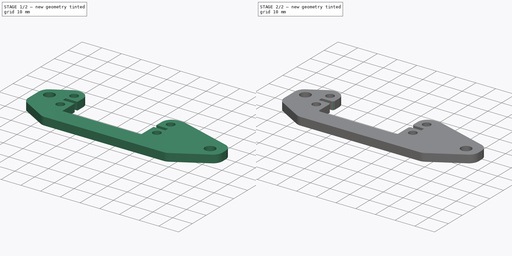
[diagram: build sequence overview — one tinted view per stage of 2, left to right]
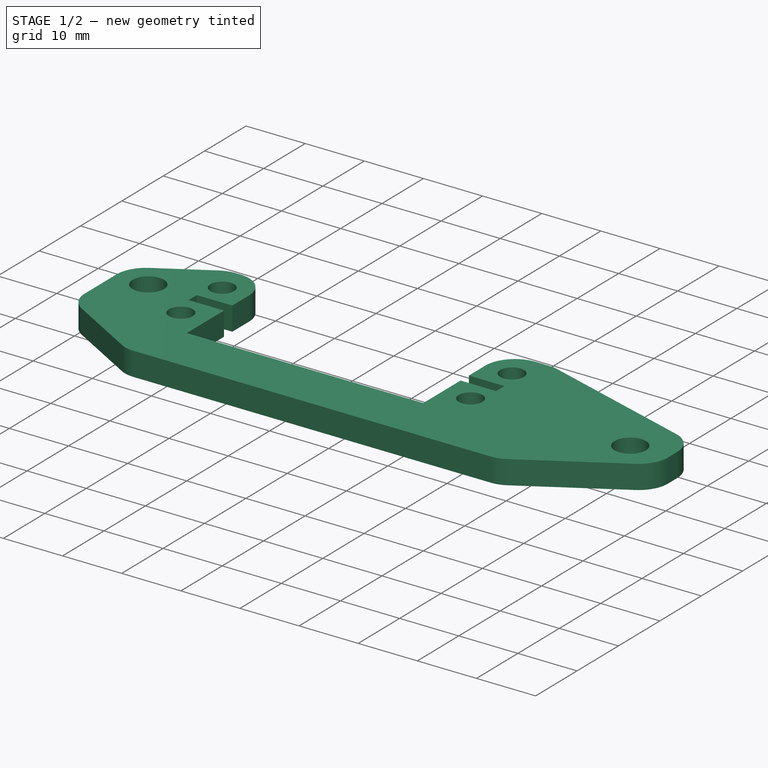
[diagram: stage 1 of 2 — iso view after this stage's code; geometry added in this stage tinted green]
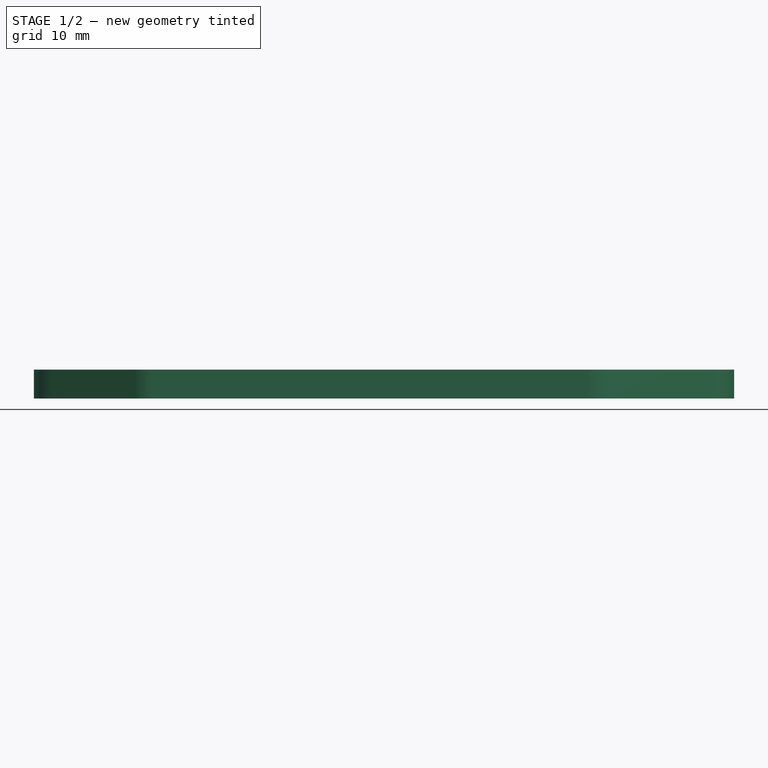
[diagram: stage 1 of 2 — front view after this stage's code; geometry added in this stage tinted green]
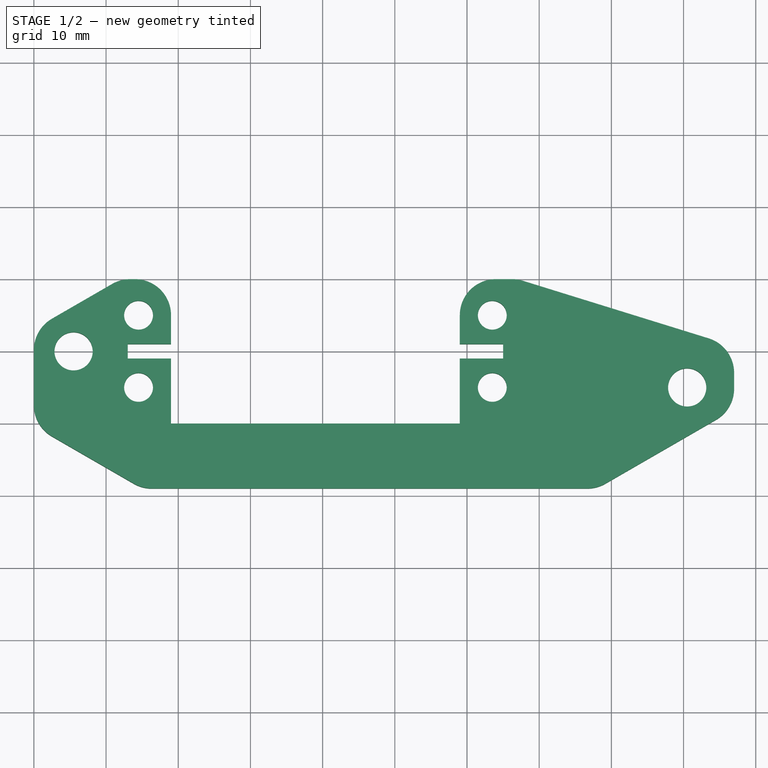
[diagram: stage 1 of 2 — top view after this stage's code; geometry added in this stage tinted green]
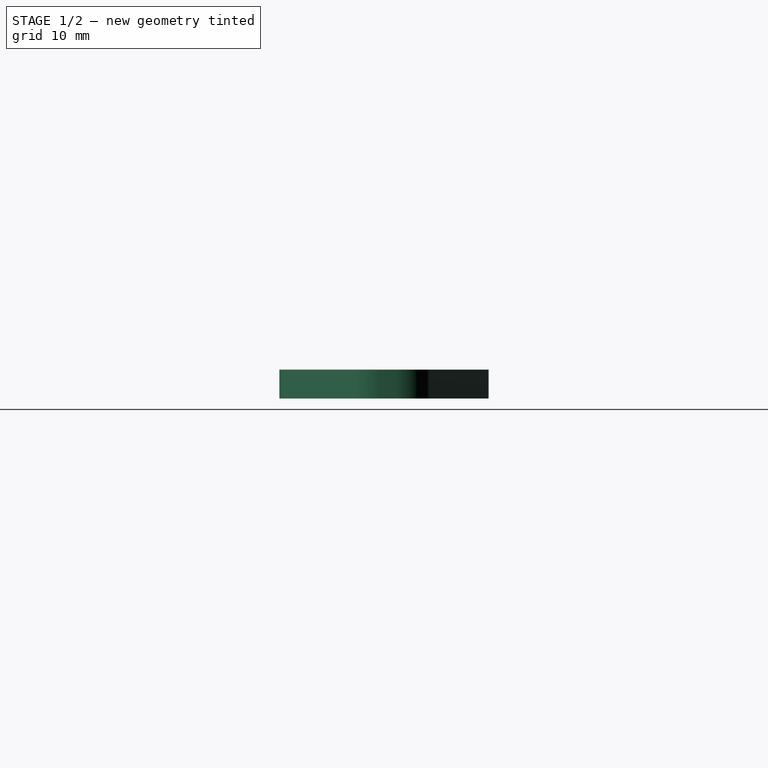
[diagram: stage 1 of 2 — right view after this stage's code; geometry added in this stage tinted green]
FCSTD DOCUMENT  (FreeCAD 0.19R24276 (Git))
Label: Servo_support_V4_long
License: All rights reserved
LicenseURL: http://en.wikipedia.org/wiki/All_rights_reserved
objects: PartDesign::Fillet×3, Sketcher::SketchObject×1, PartDesign::Pad×1, PartDesign::Body×1
note: 10 computed .brp shape members not serialized (recipe doc carries the construction recipe); baked Part::Feature solids carry a one-line shape summary decoded from their .brp

FEATURE [Sketcher::SketchObject] Sketch005  label="Sketch005_54x20"
  AttachmentOffset = pos=(0,0,-5) rot=(0,0,1;0rad)
  FullyConstrained = false
  MapMode = 5
  Placement = pos=(0,0,-3) rot=(0,0,1;0rad)
  sketch-geometry (41):
    g0: GeomPoint X=-11 Y=0 Z=0
    g1: GeomPoint X=-11 Y=0 Z=0
    g2: GeomPoint X=-11 Y=0 Z=0
    g3: GeomPoint X=-11 Y=0 Z=0
    g4: Circle CenterX=-35.5 CenterY=5 CenterZ=0 NormalX=0 NormalY=0 NormalZ=1 AngleXU=0 Radius=2
    g5: Circle CenterX=-35.5 CenterY=-5 CenterZ=0 NormalX=0 NormalY=0 NormalZ=1 AngleXU=0 Radius=2
    g6: LineSegment StartX=-11 StartY=0 StartZ=0 EndX=-11 EndY=-5 EndZ=0
    g7: Circle CenterX=13.5 CenterY=5 CenterZ=0 NormalX=0 NormalY=0 NormalZ=1 AngleXU=0 Radius=2
    g8: Circle CenterX=13.5 CenterY=-5 CenterZ=0 NormalX=0 NormalY=0 NormalZ=1 AngleXU=0 Radius=2
    g9: LineSegment StartX=-11 StartY=0 StartZ=0 EndX=-35.5 EndY=0 EndZ=0
    g10: LineSegment StartX=-11 StartY=0 StartZ=0 EndX=49.8748 EndY=0 EndZ=0
    g11: ArcOfCircle CenterX=-7.75 CenterY=13.4234 CenterZ=0 NormalX=0 NormalY=0 NormalZ=1 AngleXU=0 Radius=9 StartAngle=0.290352 EndAngle=2.85124
    g12: LineSegment StartX=0 StartY=0 StartZ=0 EndX=-7.75 EndY=13.4234 EndZ=0
    g13: Circle CenterX=-44.5 CenterY=0 CenterZ=0 NormalX=0 NormalY=0 NormalZ=1 AngleXU=0 Radius=2.65
    g14: LineSegment StartX=-50 StartY=-19 StartZ=0 EndX=47 EndY=-19 EndZ=0
    g15: Circle CenterX=-44.5 CenterY=0 CenterZ=0 NormalX=0 NormalY=0 NormalZ=1 AngleXU=0 Radius=5.5
    g16: LineSegment StartX=-38 StartY=10 StartZ=0 EndX=-31 EndY=10 EndZ=0
    g17: LineSegment StartX=47 StartY=0.7 StartZ=0 EndX=47 EndY=-8.03034 EndZ=0
    g18: LineSegment StartX=-31 StartY=-10 StartZ=0 EndX=9 EndY=-10 EndZ=0
    g19: LineSegment StartX=9 StartY=-10 StartZ=0 EndX=9 EndY=-1 EndZ=0
    g20: Circle CenterX=40.5 CenterY=-5 CenterZ=0 NormalX=0 NormalY=0 NormalZ=1 AngleXU=0 Radius=2.65
    g21: Circle CenterX=40.5 CenterY=-5 CenterZ=0 NormalX=0 NormalY=0 NormalZ=1 AngleXU=0 Radius=5.5
    g22: LineSegment StartX=-31 StartY=-10 StartZ=0 EndX=-31 EndY=-1 EndZ=0
    g23: LineSegment StartX=-38 StartY=10 StartZ=0 EndX=-50 EndY=3.07 EndZ=0
    g24: LineSegment StartX=-50 StartY=3.07 StartZ=0 EndX=-50 EndY=-19 EndZ=0
    g25: LineSegment StartX=9 StartY=10 StartZ=0 EndX=17 EndY=10 EndZ=0
    g26: LineSegment StartX=17 StartY=10 StartZ=0 EndX=47 EndY=0.7 EndZ=0
    g27: LineSegment StartX=-50 StartY=-10.3397 StartZ=0 EndX=-35 EndY=-19 EndZ=0
    g28: LineSegment StartX=28 StartY=-19 StartZ=0 EndX=47 EndY=-8.03034 EndZ=0
    g29: LineSegment StartX=-50 StartY=3.07 StartZ=0 EndX=-50 EndY=-10.3397 EndZ=0
    g30: LineSegment StartX=-35 StartY=-19 StartZ=0 EndX=28 EndY=-19 EndZ=0
    g31: LineSegment StartX=-37 StartY=1 StartZ=0 EndX=-31 EndY=1 EndZ=0
    g32: LineSegment StartX=-31 StartY=-1 StartZ=0 EndX=-37 EndY=-1 EndZ=0
    g33: LineSegment StartX=-37 StartY=-1 StartZ=0 EndX=-37 EndY=1 EndZ=0
    g34: LineSegment StartX=9 StartY=1 StartZ=0 EndX=15 EndY=1 EndZ=0
    g35: LineSegment StartX=15 StartY=1 StartZ=0 EndX=15 EndY=-1 EndZ=0
    g36: LineSegment StartX=15 StartY=-1 StartZ=0 EndX=9 EndY=-1 EndZ=0
    g37: LineSegment StartX=7.12713 StartY=-1 StartZ=0 EndX=7.12713 EndY=1 EndZ=0
    g38: LineSegment StartX=-35.5 StartY=0 StartZ=0 EndX=-37 EndY=0 EndZ=0
    g39: LineSegment StartX=-31 StartY=1 StartZ=0 EndX=-31 EndY=10 EndZ=0
    g40: LineSegment StartX=9 StartY=1 StartZ=0 EndX=9 EndY=10 EndZ=0
  constraints (105):
    c: Coincident(g1,g0)
    c: Coincident(g3,g2)
    c: Coincident(g2,g0)
    c: Vertical(g5,g4)
    c: Coincident(g6,g0)
    c: Vertical(g6)
    c: Equal(g8,g7)
    c: Equal(g7,g5)
    c: Equal(g5,g4)
    c: Diameter(g8) = 4
    c: Vertical(g7,g8)
    c: Horizontal(g5,g8)
    c: Horizontal(g4,g7)
    c: Coincident(g9,g0)
    c: Horizontal(g9)
    c: Symmetric(g5,g4,g9)
    c: Coincident(g10,g0)
    c: Horizontal(g10)
    c: Symmetric(g5,g8,g6)
    c: DistanceY(g8,g7) = 10
    c: DistanceX(g5,g8) = 49
    c: Horizontal(g0,g-1)
    c: Diameter(g11) = 18
    c: Coincident(g12,g-1)
    c: Coincident(g12,g11)
    c: Angle(g10,g12) = 2.0944
    c: Distance(g11,g-1) = 15.5
    c: Diameter(g13) = 5.3
    c: Horizontal(g14)
    c: Coincident(g15,g13)
    c: Diameter(g15) = 11
    c: Horizontal(g16)
    c: DistanceY(g18,g0) = 10
    c: Horizontal(g18)
    c: Coincident(g19,g18)
    c: PointOnObject(g40,g16)
    c: Vertical(g19)
    c: DistanceX(g-1,g8) = 13.5
    c: DistanceX(g18,g18) = 40
    c: DistanceY(g14,g10) = 19
    c: Horizontal(g13,g0)
    c: DistanceX(g13,g-1) = 44.5
    c: Diameter(g20) = 5.3
    c: DistanceY(g20,g10) = 5
    c: DistanceX(g-1,g20) = 40.5
    c: DistanceX(g14,g-1) = 50
    c: DistanceX(g14,g14) = 97
    c: Vertical(g17)
    c: Coincident(g21,g20)
    c: Equal(g15,g21)
    c: DistanceY(g13,g16) = 10
    c: DistanceX(g25,g17) = 30
    c: DistanceX(g23,g16) = 12
    c: DistanceX(g16,g4) = 2.5
    c: DistanceY(g23,g16) = 6.93
    c: Coincident(g22,g18)
    c: Coincident(g39,g16)
    c: Vertical(g22)
    c: DistanceX(g-1,g18) = 9
    c: Coincident(g23,g16)
    c: Coincident(g24,g23)
    c: Coincident(g24,g14)
    c: Coincident(g25,g40)
    c: Horizontal(g25)
    c: DistanceY(g14,g17) = 19.7
    c: Coincident(g26,g25)
    c: Coincident(g26,g17)
    c: Angle(g28,g14) = 2.61799
    c: Angle(g14,g27) = 2.61799
    c: PointOnObject(g28,g14)
    c: PointOnObject(g27,g14)
    c: DistanceX(g28,g17) = 19
    c: Coincident(g17,g28)
    c: DistanceX(g24,g27) = 15
    c: PointOnObject(g27,g24)
    c: Coincident(g29,g23)
    c: Coincident(g29,g27)
    c: Coincident(g30,g27)
    c: Coincident(g30,g28)
    c: DistanceX(g27,g17) = 97
    c: Coincident(g32,g33)
    c: Coincident(g33,g31)
    c: Horizontal(g31)
    c: Horizontal(g32)
    c: Vertical(g33)
    c: Coincident(g34,g35)
    c: Coincident(g35,g36)
    c: Horizontal(g34)
    c: Horizontal(g36)
    c: Vertical(g35)
    c: Vertical(g37)
    c: DistanceX(g31,g16) = 6
    c: Coincident(g38,g9)
    c: Horizontal(g38)
    c: Symmetric(g31,g32,g38)
    c: Coincident(g39,g31)
    c: Tangent(g22,g39)
    c: Coincident(g22,g32)
    c: DistanceY(g22,g39) = 2
    c: DistanceX(g40,g34) = 6
    c: Coincident(g40,g34)
    c: Tangent(g19,g40)
    c: Coincident(g19,g36)
    c: Horizontal(g31,g40)
    c: Horizontal(g19,g22)
FEATURE [PartDesign::Pad] Pad
  Direction = (1,1,1)
  Length = 4
  Length2 = 100
  Placement = pos=(0,0,-3) rot=(0,0,1;0rad)
  Profile = -> Sketch005
  Type = 0
FEATURE [PartDesign::Fillet] Fillet
  Base = -> Pad [Edge50,Edge47,Edge53,Edge56,Edge2,Edge1,Edge44,Edge41,Edge5,Edge38]
  BaseFeature = -> Pad
  Placement = pos=(0,0,-3) rot=(0,0,1;0rad)
  Radius = 5
  SupportTransform = false
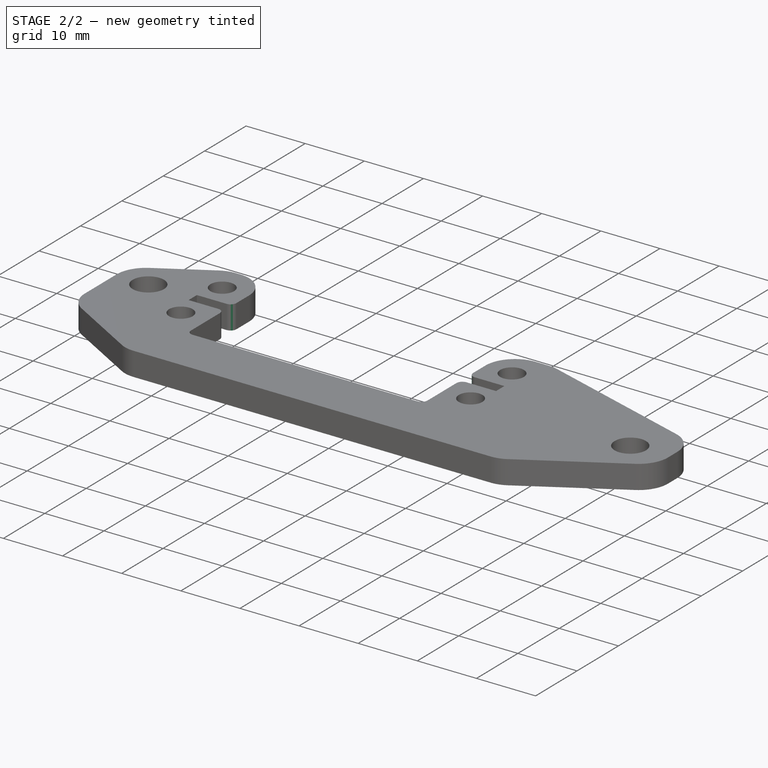
[diagram: stage 2 of 2 — iso view after this stage's code; geometry added in this stage tinted green]
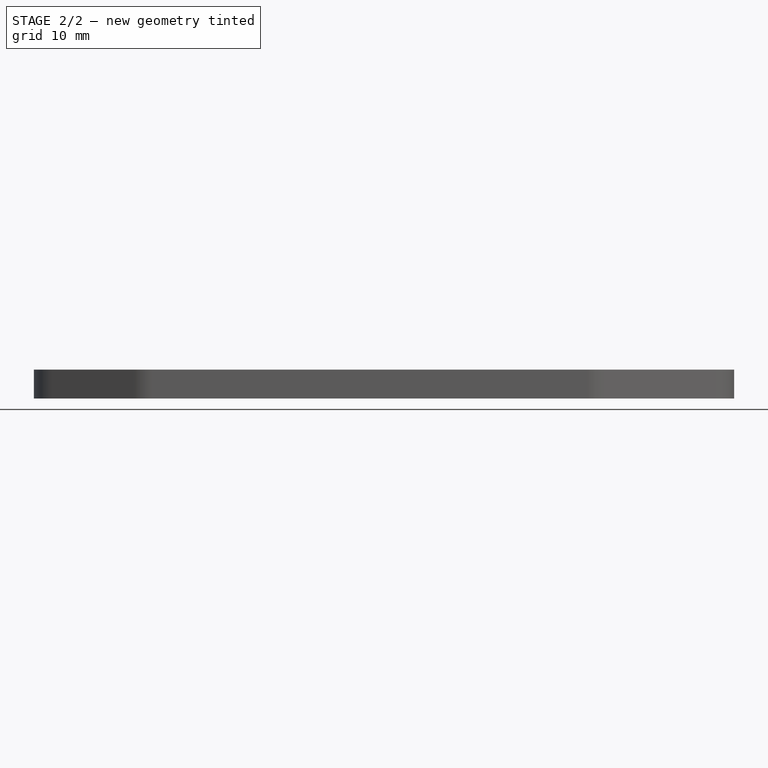
[diagram: stage 2 of 2 — front view after this stage's code; geometry added in this stage tinted green]
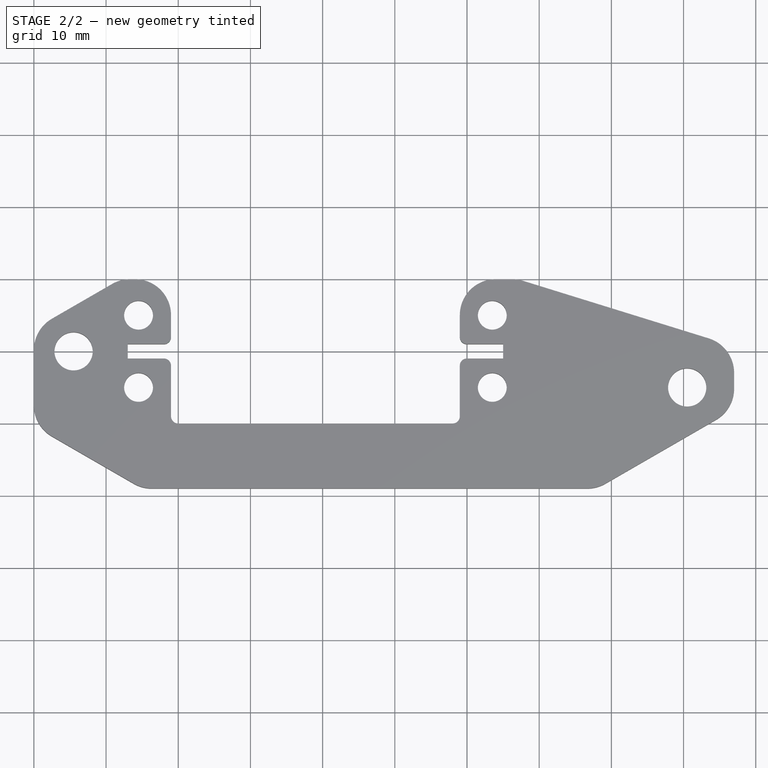
[diagram: stage 2 of 2 — top view after this stage's code; geometry added in this stage tinted green]
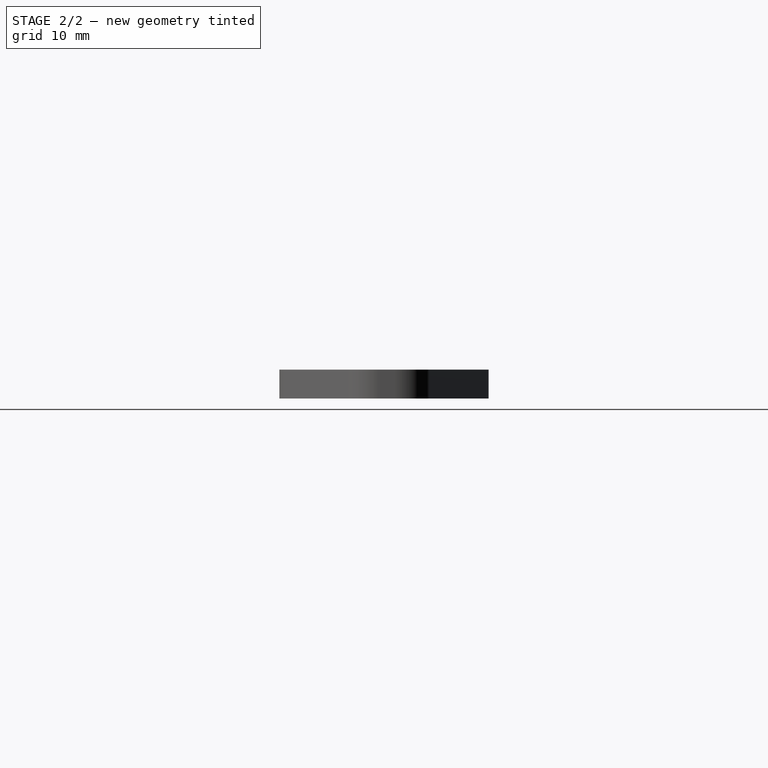
[diagram: stage 2 of 2 — right view after this stage's code; geometry added in this stage tinted green]
FEATURE [PartDesign::Fillet] Fillet001
  Base = -> Fillet [Edge89,Edge91]
  BaseFeature = -> Fillet
  Placement = pos=(0,0,-3) rot=(0,0,1;0rad)
  Radius = 1
  SupportTransform = false
FEATURE [PartDesign::Fillet] Fillet002
  Base = -> Fillet001 [Edge40,Edge52,Edge66,Edge54]
  BaseFeature = -> Fillet001
  Placement = pos=(0,0,-3) rot=(0,0,1;0rad)
  Radius = 1
  SupportTransform = false
FEATURE [PartDesign::Body] Body
  Group = -> [Sketch005,Pad,Fillet,Fillet001,Fillet002]
  Origin = -> Origin
  Tip = -> Fillet002
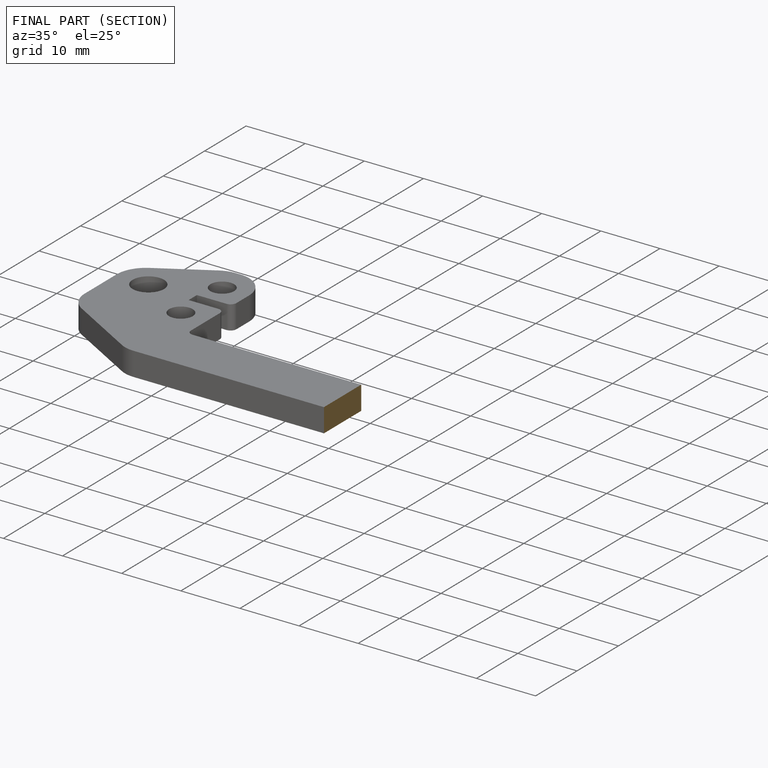
[diagram: finished part — half-section view (interior)]
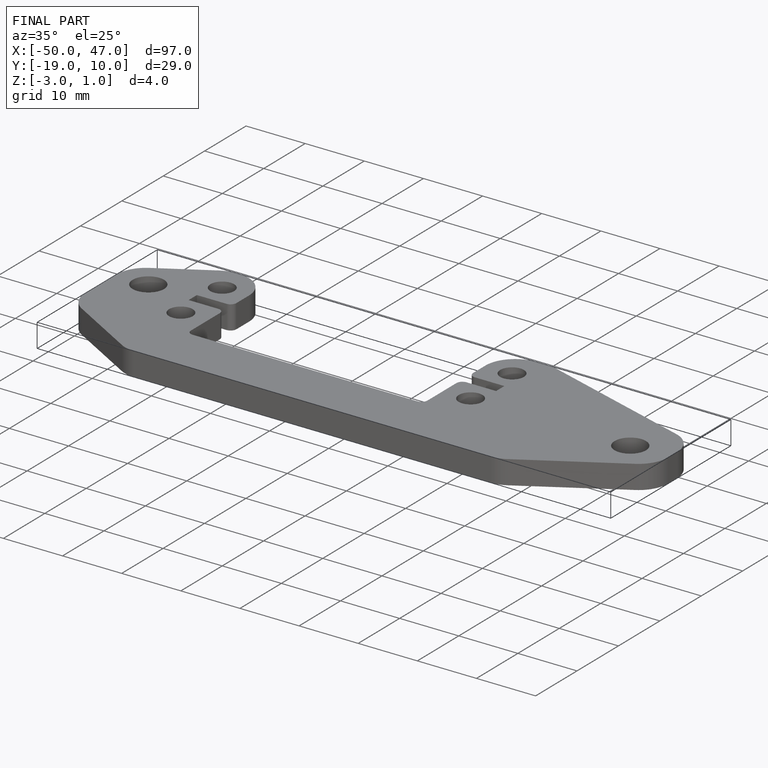
[diagram: finished part — iso view with bounding-box wireframe]
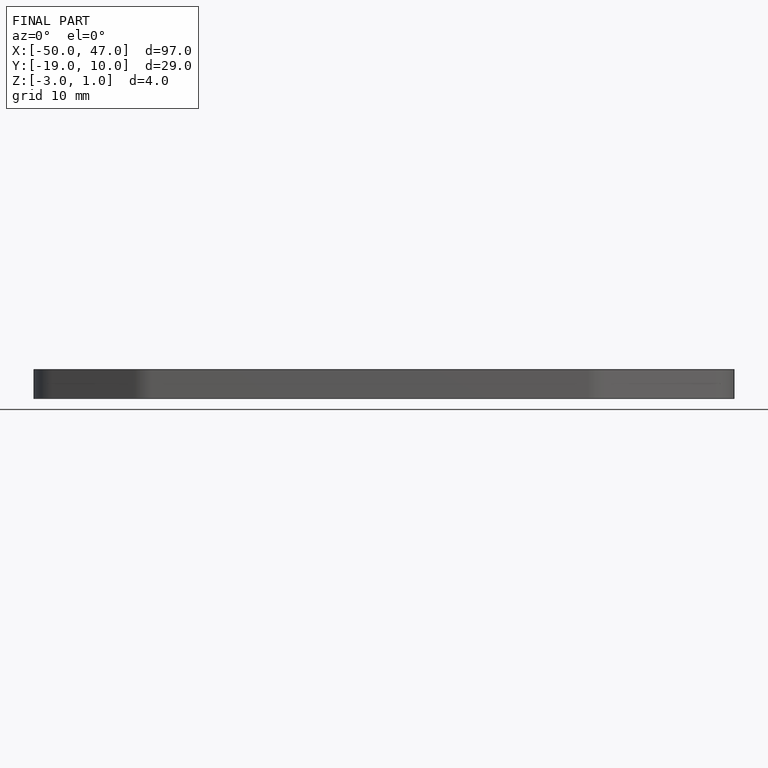
[diagram: finished part — front view with bounding-box wireframe]
